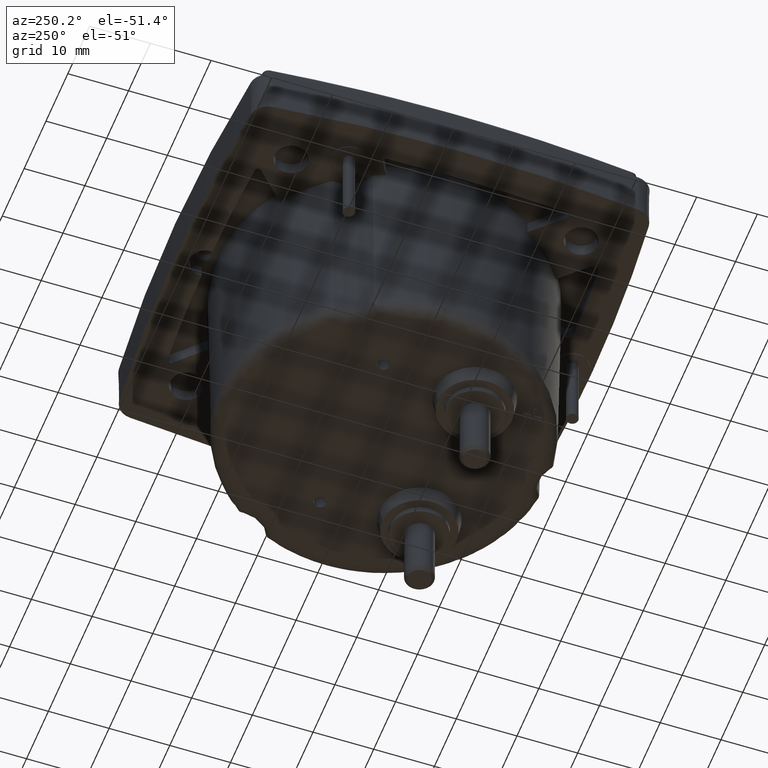
[diagram: clean part render]
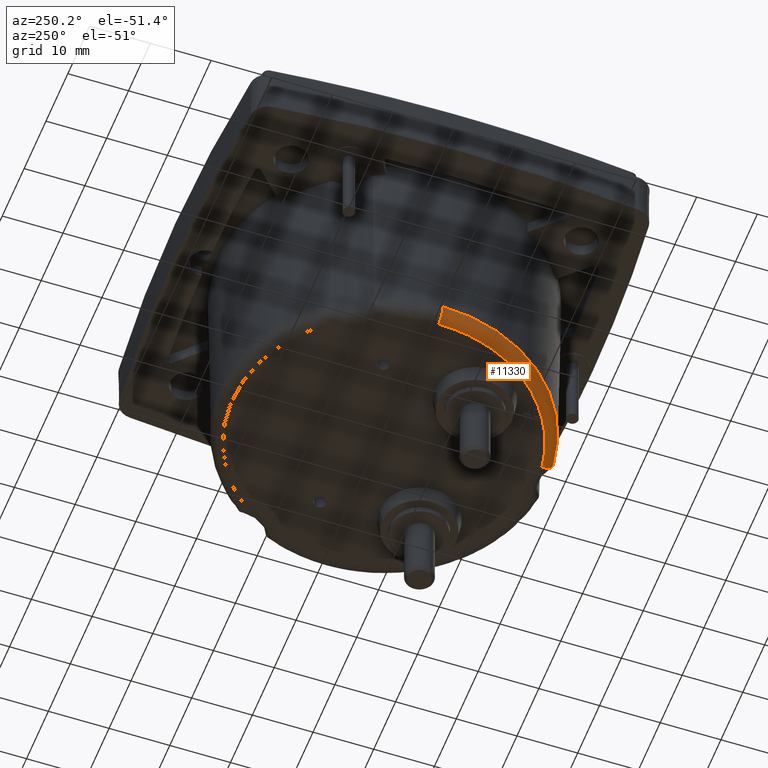
[diagram: same view with one face highlighted and labeled with its STEP entity id]
A machine part, auxiliary view. The second image highlights one B-rep face of the part: STEP entity #11330.
In plain terms, the highlighted face is a freeform B-spline surface patch.
Its self-contained STEP definition (entity closure, byte-faithful):
#498 = DIRECTION ( 'NONE',  ( -1.000000000000000000, 0.000000000000000000, -3.861406380747935715E-16 ) ) ;
#855 = EDGE_CURVE ( 'NONE', #14025, #3529, #6146, .T. ) ;
#1100 = CARTESIAN_POINT ( 'NONE',  ( 0.4367314559557832210, -1.254039123448322357, -1.230756557239329085 ) ) ;
#1139 = CARTESIAN_POINT ( 'NONE',  ( -0.4575446375309926705, -0.7571703503663564927, -1.275590944881890509 ) ) ;
#1872 = CARTESIAN_POINT ( 'NONE',  ( -0.09305873728996515160, -1.166604985834078345, -1.275590944881890509 ) ) ;
#2090 = CARTESIAN_POINT ( 'NONE',  ( 0.4566883937404204730, -1.184881882469003722, -1.275590944881889843 ) ) ;
#3529 = VERTEX_POINT ( 'NONE', #12009 ) ;
#4052 = CARTESIAN_POINT ( 'NONE',  ( 0.4324050108827983130, -1.232522901343069632, -1.257442806351625864 ) ) ;
#4278 = CARTESIAN_POINT ( 'NONE',  ( 0.4302515744192162983, -1.221064350942299370, -1.265303980137897133 ) ) ;
#4790 = CARTESIAN_POINT ( 'NONE',  ( 0.4293726458750226627, -1.216193193498553260, -1.267834586900738136 ) ) ;
#5031 = CARTESIAN_POINT ( 'NONE',  ( 0.4271743252855529360, -1.203545783583061191, -1.272388148840947419 ) ) ;
#6146 = B_SPLINE_CURVE_WITH_KNOTS ( 'NONE', 3,
 ( #18059, #14387, #25643, #40626, #5031, #23714, #34977, #23938, #15352, #31297, #19527, #12159, #15608, #4790, #4278, #41866, #34502, #4052, #23452, #19783, #19271, #7990, #19044, #8970, #34753, #38417, #34236, #42347, #42607, #1100, #23197, #30313, #42084, #34008, #46010 ),
 .UNSPECIFIED., .F., .F.,
 ( 4, 2, 2, 2, 1, 1, 2, 2, 2, 2, 1, 1, 2, 2, 2, 2, 1, 2, 2, 4 ),
 ( 0.000000000000000000, 0.1250000000001151024, 0.1875000000001742217, 0.2187500000002037537, 0.2343750000002170764, 0.2421875000002214895, 0.2460937500002194078, 0.2500000000002173262, 0.3750000000001650902, 0.4375000000001406097, 0.4687500000001270095, 0.4843750000001227352, 0.4921875000001205702, 0.5000000000001184608, 0.6250000000000707212, 0.6875000000000468514, 0.7187500000000394129, 0.7343750000000327516, 0.7500000000000290878, 1.000000000000000000 ),
 .UNSPECIFIED. ) ;
#6316 = CIRCLE ( 'NONE', #11129, 0.07874015748031495954 ) ;
#6843 = EDGE_CURVE ( 'NONE', #18613, #10567, #6316, .T. ) ;
#7570 = DIRECTION ( 'NONE',  ( 0.000000000000000000, 1.000000000000000000, 0.000000000000000000 ) ) ;
#7990 = CARTESIAN_POINT ( 'NONE',  ( 0.4331831092453625742, -1.236533877044949659, -1.253995837710131234 ) ) ;
#8970 = CARTESIAN_POINT ( 'NONE',  ( 0.4340522356524874059, -1.240978552568491766, -1.249871988724940319 ) ) ;
#9487 = CARTESIAN_POINT ( 'NONE',  ( -0.4907836737845894803, -0.7748950637216911463, -1.198224992632858310 ) ) ;
#10567 = VERTEX_POINT ( 'NONE', #46444 ) ;
#10996 = CARTESIAN_POINT ( 'NONE',  ( 0.4234687073511456123, -1.180434525700972515, -1.275590944881889843 ) ) ;
#11129 = AXIS2_PLACEMENT_3D ( 'NONE', #18400, #7570, #30667 ) ;
#11330 = ADVANCED_FACE ( 'NONE', ( #35730 ), #36525, .T. ) ;
#11356 =( BOUNDED_CURVE ( )  B_SPLINE_CURVE ( 3, ( #28687, #33338, #14677, #10996 ),
 .UNSPECIFIED., .F., .F. ) 
 B_SPLINE_CURVE_WITH_KNOTS ( ( 4, 4 ),
 ( 0.2081565305515306330, 1.000000000000000000 ),
 .UNSPECIFIED. ) 
 CURVE ( )  GEOMETRIC_REPRESENTATION_ITEM ( )  RATIONAL_B_SPLINE_CURVE ( ( 1.000000000000000000, 0.8387660308011147814, 0.8387660308011147814, 1.000000000000000000 ) ) 
 REPRESENTATION_ITEM ( '' )  );
#12009 = CARTESIAN_POINT ( 'NONE',  ( 0.4384331776564109884, -1.261975085341303204, -1.198224992633031505 ) ) ;
#12159 = CARTESIAN_POINT ( 'NONE',  ( 0.4284018717039177471, -1.210632207852501363, -1.269991083619488315 ) ) ;
#12972 = EDGE_CURVE ( 'NONE', #10567, #3529, #27210, .T. ) ;
#13895 = AXIS2_PLACEMENT_3D ( 'NONE', #16010, #27040, #498 ) ;
#13916 = CARTESIAN_POINT ( 'NONE',  ( 0.4234687073511456123, -1.180434525700972515, -1.275590944881889843 ) ) ;
#14025 = VERTEX_POINT ( 'NONE', #13916 ) ;
#14387 = CARTESIAN_POINT ( 'NONE',  ( 0.4245579620095912832, -1.187563064469837837, -1.275590944881890065 ) ) ;
#14677 = CARTESIAN_POINT ( 'NONE',  ( -0.08001050151304463232, -1.104267220361647928, -1.275590944881890065 ) ) ;
#15352 = CARTESIAN_POINT ( 'NONE',  ( 0.4281952105764654792, -1.209448556063787983, -1.270438521303988599 ) ) ;
#15608 = CARTESIAN_POINT ( 'NONE',  ( 0.4284056467286246339, -1.210653819291271915, -1.269982900279138072 ) ) ;
#16010 = CARTESIAN_POINT ( 'NONE',  ( 0.5704286375722834590, -0.2090036857513889734, -1.198224992633279529 ) ) ;
#16380 = CARTESIAN_POINT ( 'NONE',  ( -0.1145122920087241342, -1.197568577107150922, -1.198224992632858310 ) ) ;
#18059 = CARTESIAN_POINT ( 'NONE',  ( 0.4234687073511456123, -1.180434525700972515, -1.275590944881889843 ) ) ;
#18400 = CARTESIAN_POINT ( 'NONE',  ( -0.4120555088116457099, -0.2090036857513889734, -1.196850787401574800 ) ) ;
#18613 = VERTEX_POINT ( 'NONE', #24647 ) ;
#19044 = CARTESIAN_POINT ( 'NONE',  ( 0.4332161518617290152, -1.236703037453853460, -1.253840888614208504 ) ) ;
#19271 = CARTESIAN_POINT ( 'NONE',  ( 0.4330998999105908354, -1.236107546636922905, -1.254383178737044524 ) ) ;
#19527 = CARTESIAN_POINT ( 'NONE',  ( 0.4283682902277514137, -1.210439875856469616, -1.270064860217677838 ) ) ;
#19783 = CARTESIAN_POINT ( 'NONE',  ( 0.4329741043976461645, -1.235462370064289939, -1.254963080959631272 ) ) ;
#20051 = CARTESIAN_POINT ( 'NONE',  ( -0.06369857459921873799, -1.124229906776793797, -1.275590944881889843 ) ) ;
#20553 = CARTESIAN_POINT ( 'NONE',  ( -0.1139998865163800029, -1.196829030004630479, -1.243707193137571387 ) ) ;
#23197 = CARTESIAN_POINT ( 'NONE',  ( 0.4368452367984375639, -1.254577007918148857, -1.229646309281234640 ) ) ;
#23452 = CARTESIAN_POINT ( 'NONE',  ( 0.4326737907529947802, -1.233916947579940082, -1.256307647449837361 ) ) ;
#23714 = CARTESIAN_POINT ( 'NONE',  ( 0.4276925035477410209, -1.206557683907257816, -1.271446400270724864 ) ) ;
#23756 = CARTESIAN_POINT ( 'NONE',  ( -0.4899897790217009330, -0.7744717194045110942, -1.243707193137571387 ) ) ;
#23938 = CARTESIAN_POINT ( 'NONE',  ( 0.4280845379822841301, -1.208813884193920218, -1.270668226141215884 ) ) ;
#24223 = CARTESIAN_POINT ( 'NONE',  ( 0.4514222073991134287, -1.230065154960757745, -1.275590944881890509 ) ) ;
#24471 = CARTESIAN_POINT ( 'NONE',  ( -0.4907836737845895358, -0.2090036857513891400, -1.198224992632858088 ) ) ;
#24647 = CARTESIAN_POINT ( 'NONE',  ( -0.4120637148025882990, -0.2090036892705135485, -1.275590944881889843 ) ) ;
#25643 = CARTESIAN_POINT ( 'NONE',  ( 0.4255327000208910526, -1.193695460697864918, -1.274703461598227783 ) ) ;
#27040 = DIRECTION ( 'NONE',  ( 0.000000000000000000, 0.000000000000000000, 1.000000000000000000 ) ) ;
#27210 = CIRCLE ( 'NONE', #13895, 1.061212311381397821 ) ;
#27708 = EDGE_CURVE ( 'NONE', #18613, #14025, #11356, .T. ) ;
#28687 = CARTESIAN_POINT ( 'NONE',  ( -0.4120637148025882990, -0.2090036892705135485, -1.275590944881889843 ) ) ;
#30313 = CARTESIAN_POINT ( 'NONE',  ( 0.4368959715161089830, -1.254816484819685884, -1.229137994452018434 ) ) ;
#30594 = ORIENTED_EDGE ( 'NONE', *, *, #12972, .F. ) ;
#30667 = DIRECTION ( 'NONE',  ( -1.000000000000000000, 0.000000000000000000, 0.000000000000000000 ) ) ;
#31297 = CARTESIAN_POINT ( 'NONE',  ( 0.4283174155209925060, -1.210148513970716655, -1.270176007990954092 ) ) ;
#31715 = ORIENTED_EDGE ( 'NONE', *, *, #27708, .T. ) ;
#31822 = CARTESIAN_POINT ( 'NONE',  ( -0.4899897790217009330, -0.2090036857513891677, -1.243707193137571165 ) ) ;
#33338 = CARTESIAN_POINT ( 'NONE',  ( -0.4120555078996957499, -0.7182116726812014518, -1.275590944881890065 ) ) ;
#33394 = EDGE_LOOP ( 'NONE', ( #35364, #31715, #39401, #30594 ) ) ;
#34008 = CARTESIAN_POINT ( 'NONE',  ( 0.4383928185166341418, -1.261789878404824261, -1.208465501720488833 ) ) ;
#34236 = CARTESIAN_POINT ( 'NONE',  ( 0.4359724932968750410, -1.250420615241126354, -1.237343623403693194 ) ) ;
#34502 = CARTESIAN_POINT ( 'NONE',  ( 0.4318530045136701467, -1.229640502708192251, -1.259682458250033443 ) ) ;
#34753 = CARTESIAN_POINT ( 'NONE',  ( 0.4347588975747714302, -1.244505218933594115, -1.245828702199528015 ) ) ;
#34977 = CARTESIAN_POINT ( 'NONE',  ( 0.4278554845925205408, -1.207497669011365904, -1.271131781386068305 ) ) ;
#35364 = ORIENTED_EDGE ( 'NONE', *, *, #6843, .F. ) ;
#35730 = FACE_OUTER_BOUND ( 'NONE', #33394, .T. ) ;
#36525 =( BOUNDED_SURFACE ( )  B_SPLINE_SURFACE ( 3, 3, ( 
 ( #2090, #20051, #38928, #42866 ),
 ( #24223, #1872, #1139, #46058 ),
 ( #39185, #20553, #23756, #31822 ),
 ( #43118, #16380, #9487, #24471 ) ),
 .UNSPECIFIED., .F., .F., .F. ) 
 B_SPLINE_SURFACE_WITH_KNOTS ( ( 4, 4 ),
 ( 4, 4 ),
 ( 0.000000000000000000, 1.000000000000000000 ),
 ( 0.000000000000000000, 1.000000000000000000 ),
 .UNSPECIFIED. ) 
 GEOMETRIC_REPRESENTATION_ITEM ( )  RATIONAL_B_SPLINE_SURFACE ( (
 ( 1.000000000000000000, 0.8312775558935877607, 0.8312775558935877607, 1.000000000000000000),
 ( 0.8088336327694533034, 0.6723652453731228107, 0.6723652453731228107, 0.8088336327694533034),
 ( 0.8088336327694533034, 0.6723652453731228107, 0.6723652453731228107, 0.8088336327694533034),
 ( 1.000000000000000000, 0.8312775558935877607, 0.8312775558935877607, 1.000000000000000000) ) ) 
 REPRESENTATION_ITEM ( '' )  SURFACE ( )  );
#38417 = CARTESIAN_POINT ( 'NONE',  ( 0.4356857580509615469, -1.249036240866651992, -1.239498227942650965 ) ) ;
#38928 = CARTESIAN_POINT ( 'NONE',  ( -0.4120555088116439890, -0.7329132762086445485, -1.275590944881889843 ) ) ;
#39185 = CARTESIAN_POINT ( 'NONE',  ( 0.4476660976258464708, -1.262292144359757673, -1.243707193137571165 ) ) ;
#39401 = ORIENTED_EDGE ( 'NONE', *, *, #855, .T. ) ;
#40626 = CARTESIAN_POINT ( 'NONE',  ( 0.4267899105815091687, -1.201281460412516156, -1.273014060127122926 ) ) ;
#41866 = CARTESIAN_POINT ( 'NONE',  ( 0.4314657507990192764, -1.227592980815988888, -1.261134808227817761 ) ) ;
#42084 = CARTESIAN_POINT ( 'NONE',  ( 0.4378899743543742118, -1.259502556576332921, -1.218847871037296970 ) ) ;
#42347 = CARTESIAN_POINT ( 'NONE',  ( 0.4363674999072187366, -1.252310882334071174, -1.234067494345470806 ) ) ;
#42607 = CARTESIAN_POINT ( 'NONE',  ( 0.4365562280952805518, -1.253209482750441417, -1.232418349560894910 ) ) ;
#42866 = CARTESIAN_POINT ( 'NONE',  ( -0.4120555088116441556, -0.2090036857513891400, -1.275590944881889843 ) ) ;
#43118 = CARTESIAN_POINT ( 'NONE',  ( 0.4475741900014434949, -1.263080701195450795, -1.198224992632858088 ) ) ;
#46010 = CARTESIAN_POINT ( 'NONE',  ( 0.4384331776564109884, -1.261975085341303204, -1.198224992633031505 ) ) ;
#46058 = CARTESIAN_POINT ( 'NONE',  ( -0.4575446375309927816, -0.2090036857513891677, -1.275590944881890509 ) ) ;
#46444 = CARTESIAN_POINT ( 'NONE',  ( -0.4907836737968483964, -0.2090036857513889734, -1.198224992633279973 ) ) ;